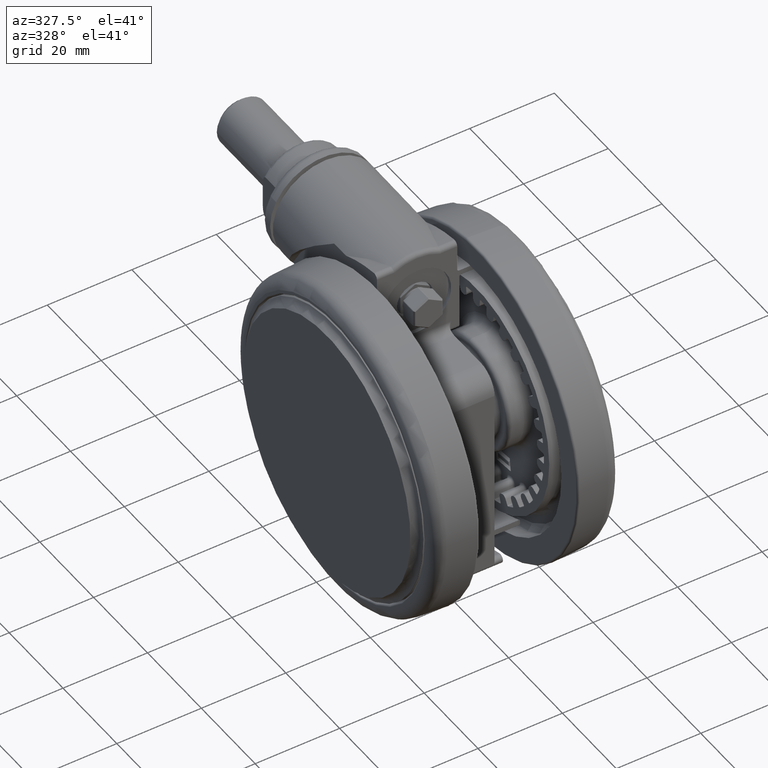
[diagram: clean part render]
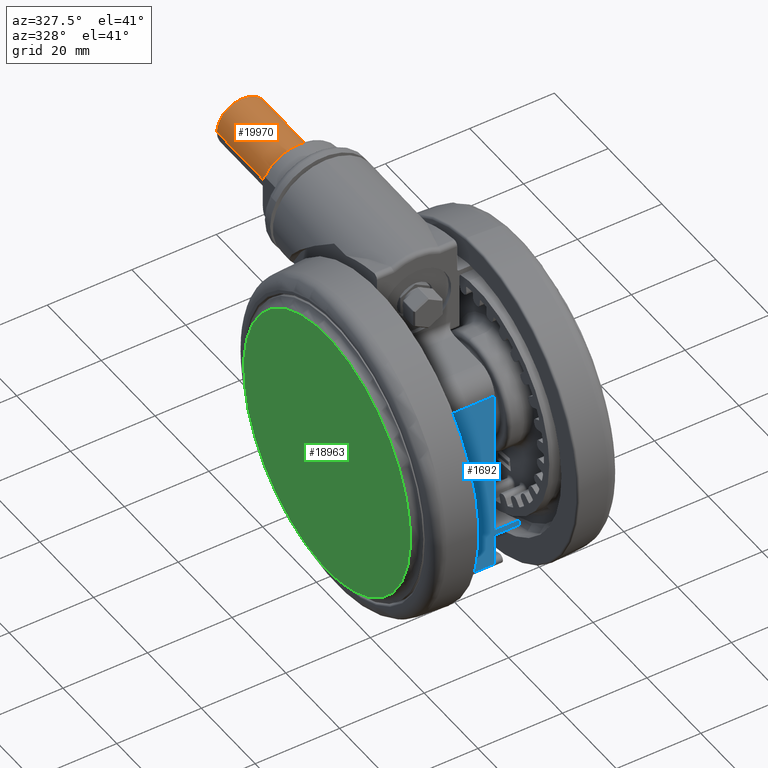
[diagram: same view with three faces highlighted in distinct colors, each labeled with its STEP entity id]
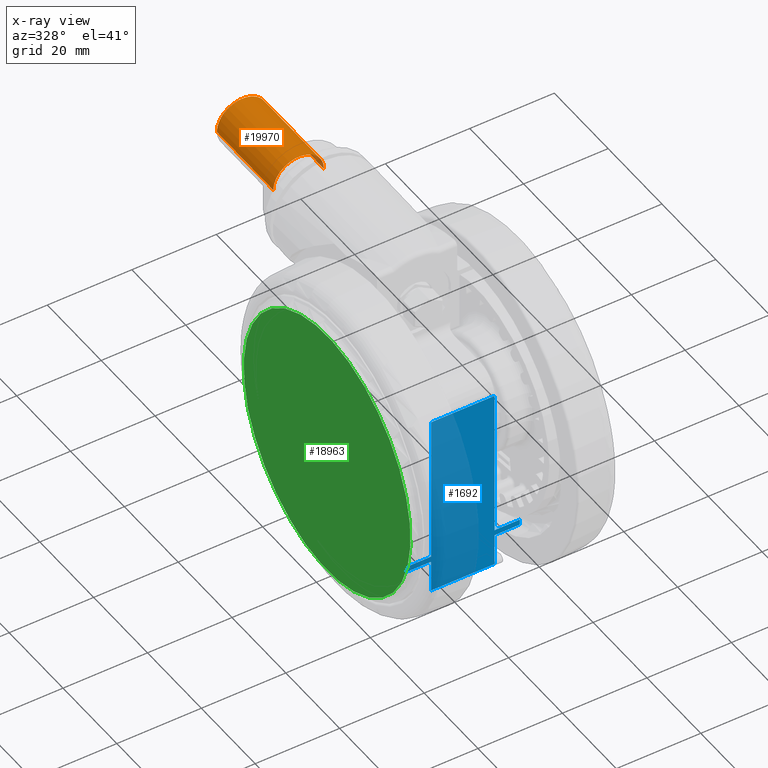
[diagram: x-ray of the same camera — body ghosted, the three highlighted faces saturated]
A machine part, auxiliary view with three faces highlighted in distinct colors.
The next image is the same camera in x-ray (body ghosted, the three faces saturated) — at least one of them is partly hidden behind the body in this view.
Their STEP definitions:

[orange] entity #19970 — the highlighted cylindrical surface (edge-blend (fillet) strip) has radius 6 mm, axis along (0, -1, 0).
#3627 = FACE_OUTER_BOUND ( 'NONE', #69782, .T. ) ;
#6459 = CARTESIAN_POINT ( 'NONE',  ( -44.87548439714007700, -31.08361143950350300, -17.84999999999990900 ) ) ;
#6704 = CARTESIAN_POINT ( 'NONE',  ( -65.75002806099449500, -33.37564695969847900, -29.84999999999991300 ) ) ;
#12896 = VECTOR ( 'NONE', #62279, 1000.000000000000100 ) ;
#16905 = DIRECTION ( 'NONE',  ( 0.9940258887549721100, 0.1091445485807130100, 0.0000000000000000000 ) ) ;
#17796 = AXIS2_PLACEMENT_3D ( 'NONE', #31899, #71784, #37693 ) ;
#18151 = DIRECTION ( 'NONE',  ( 0.0000000000000000000, 0.0000000000000000000, 1.000000000000000000 ) ) ;
#19970 = ADVANCED_FACE ( 'NONE', ( #3627 ), #32045, .T. ) ;
#20348 = DIRECTION ( 'NONE',  ( 0.9940258887549722200, 0.1091445485807130300, -0.0000000000000000000 ) ) ;
#22356 = CARTESIAN_POINT ( 'NONE',  ( -66.74405394974947100, -33.48479150827918700, -17.84999999999990900 ) ) ;
#29431 = VERTEX_POINT ( 'NONE', #6704 ) ;
#29592 = DIRECTION ( 'NONE',  ( 0.9940258887549722200, 0.1091445485807130300, 0.0000000000000000000 ) ) ;
#31899 = CARTESIAN_POINT ( 'NONE',  ( -44.87548439714007700, -31.08361143950350000, -23.84999999999990500 ) ) ;
#32045 = CYLINDRICAL_SURFACE ( 'NONE', #65500, 5.999999999999998200 ) ;
#32374 = ORIENTED_EDGE ( 'NONE', *, *, #35498, .F. ) ;
#35498 = EDGE_CURVE ( 'NONE', #41218, #51645, #56637, .T. ) ;
#37693 = DIRECTION ( 'NONE',  ( 0.0000000000000000000, 0.0000000000000000000, -1.000000000000000000 ) ) ;
#39360 = AXIS2_PLACEMENT_3D ( 'NONE', #54600, #20348, #60279 ) ;
#41218 = VERTEX_POINT ( 'NONE', #73146 ) ;
#41612 = ORIENTED_EDGE ( 'NONE', *, *, #57102, .T. ) ;
#46044 = CIRCLE ( 'NONE', #39360, 5.999999999999998200 ) ;
#46895 = CARTESIAN_POINT ( 'NONE',  ( -66.74405394974947100, -33.48479150827918700, -23.84999999999990500 ) ) ;
#51122 = EDGE_CURVE ( 'NONE', #59319, #51645, #61589, .T. ) ;
#51645 = VERTEX_POINT ( 'NONE', #6459 ) ;
#53853 = ORIENTED_EDGE ( 'NONE', *, *, #59234, .T. ) ;
#54600 = CARTESIAN_POINT ( 'NONE',  ( -65.75002806099449500, -33.37564695969847900, -23.84999999999990500 ) ) ;
#56637 = LINE ( 'NONE', #22356, #12896 ) ;
#56846 = CARTESIAN_POINT ( 'NONE',  ( -66.74405394974947100, -33.48479150827918700, -29.84999999999990500 ) ) ;
#57102 = EDGE_CURVE ( 'NONE', #29431, #59319, #63956, .T. ) ;
#59234 = EDGE_CURVE ( 'NONE', #41218, #29431, #46044, .T. ) ;
#59319 = VERTEX_POINT ( 'NONE', #61269 ) ;
#60279 = DIRECTION ( 'NONE',  ( 0.0000000000000000000, 0.0000000000000000000, -1.000000000000000000 ) ) ;
#60443 = ORIENTED_EDGE ( 'NONE', *, *, #51122, .T. ) ;
#61269 = CARTESIAN_POINT ( 'NONE',  ( -44.87548439714007700, -31.08361143950350300, -29.84999999999990500 ) ) ;
#61589 = CIRCLE ( 'NONE', #17796, 5.999999999999998200 ) ;
#62279 = DIRECTION ( 'NONE',  ( 0.9940258887549721100, 0.1091445485807130100, 0.0000000000000000000 ) ) ;
#63956 = LINE ( 'NONE', #56846, #65761 ) ;
#65500 = AXIS2_PLACEMENT_3D ( 'NONE', #46895, #29592, #18151 ) ;
#65761 = VECTOR ( 'NONE', #16905, 1000.000000000000100 ) ;
#69782 = EDGE_LOOP ( 'NONE', ( #53853, #41612, #60443, #32374 ) ) ;
#71784 = DIRECTION ( 'NONE',  ( -0.9940258887549722200, -0.1091445485807130300, 0.0000000000000000000 ) ) ;
#73146 = CARTESIAN_POINT ( 'NONE',  ( -65.75002806099449500, -33.37564695969847900, -17.84999999999990200 ) ) ;

[blue] entity #1692 — the highlighted planar face has unit normal (0, 1, 0).
#827 = ORIENTED_EDGE ( 'NONE', *, *, #38856, .T. ) ;
#1692 = ADVANCED_FACE ( 'NONE', ( #31874 ), #30031, .F. ) ;
#1724 = DIRECTION ( 'NONE',  ( 0.1091445485807130100, -0.9940258887549721100, 0.0000000000000000000 ) ) ;
#2764 = VERTEX_POINT ( 'NONE', #31605 ) ;
#2939 = ORIENTED_EDGE ( 'NONE', *, *, #54223, .F. ) ;
#4880 = EDGE_CURVE ( 'NONE', #56197, #9586, #49516, .T. ) ;
#5041 = VECTOR ( 'NONE', #63316, 1000.000000000000100 ) ;
#5417 = ORIENTED_EDGE ( 'NONE', *, *, #72891, .T. ) ;
#5443 = CARTESIAN_POINT ( 'NONE',  ( 9.989570540974575900, 28.12882828002068800, -10.54999999998470600 ) ) ;
#5487 = CARTESIAN_POINT ( 'NONE',  ( 10.01383911535957900, 27.90780403707347500, -37.34999999999990200 ) ) ;
#6164 = VECTOR ( 'NONE', #20583, 1000.000000000000100 ) ;
#7129 = DIRECTION ( 'NONE',  ( 0.0000000000000000000, 0.0000000000000000000, 1.000000000000000000 ) ) ;
#7301 = VECTOR ( 'NONE', #60200, 1000.000000000000100 ) ;
#7630 = CARTESIAN_POINT ( 'NONE',  ( 10.13578730687305600, 26.79716991903868000, -37.15000000001510500 ) ) ;
#7912 = CARTESIAN_POINT ( 'NONE',  ( 9.989570540974575900, 28.12882828002068800, -16.35000000000672700 ) ) ;
#8002 = CARTESIAN_POINT ( 'NONE',  ( 10.13578730687305600, 26.79716991903868400, -10.49372095676298500 ) ) ;
#8078 = VECTOR ( 'NONE', #37909, 1000.000000000000100 ) ;
#9076 = LINE ( 'NONE', #49043, #7301 ) ;
#9586 = VERTEX_POINT ( 'NONE', #58008 ) ;
#10014 = CARTESIAN_POINT ( 'NONE',  ( 14.01378203962176300, -8.521379756000452900, -31.34999999999990500 ) ) ;
#10168 = ORIENTED_EDGE ( 'NONE', *, *, #31298, .T. ) ;
#10650 = VECTOR ( 'NONE', #32540, 1000.000000000000000 ) ;
#11805 = EDGE_CURVE ( 'NONE', #50987, #65446, #9076, .T. ) ;
#12108 = LINE ( 'NONE', #27726, #28998 ) ;
#12461 = ORIENTED_EDGE ( 'NONE', *, *, #36657, .F. ) ;
#12531 = EDGE_CURVE ( 'NONE', #58923, #44013, #38375, .T. ) ;
#12905 = VERTEX_POINT ( 'NONE', #58997 ) ;
#13429 = CARTESIAN_POINT ( 'NONE',  ( 10.11743183890163200, 26.96434098347633300, -10.34999999999991100 ) ) ;
#13677 = CARTESIAN_POINT ( 'NONE',  ( 9.989570540974575900, 28.12882828002068800, 499976.1500000000200 ) ) ;
#14333 = DIRECTION ( 'NONE',  ( -0.1091445485807130100, 0.9940258887549721100, 0.0000000000000000000 ) ) ;
#14734 = B_SPLINE_CURVE_WITH_KNOTS ( 'NONE', 3,
 ( #36384, #13429, #30607, #42135, #8002, #47872 ),
 .UNSPECIFIED., .F., .F.,
 ( 4, 2, 4 ),
 ( 0.0000000000000000000, 0.0001658503441797117100, 0.0003317006883594234300 ),
 .UNSPECIFIED. ) ;
#14813 = LINE ( 'NONE', #41497, #58528 ) ;
#15199 = LINE ( 'NONE', #13677, #72267 ) ;
#16257 = DIRECTION ( 'NONE',  ( 0.0000000000000000000, -0.0000000000000000000, -1.000000000000000000 ) ) ;
#16564 = EDGE_CURVE ( 'NONE', #12905, #65446, #73499, .T. ) ;
#16812 = CARTESIAN_POINT ( 'NONE',  ( 10.00171457369481800, 28.01822740187530800, -10.36907386668765000 ) ) ;
#16854 = CARTESIAN_POINT ( 'NONE',  ( 10.00178273068189800, 28.01760666716581800, -37.33140093454709800 ) ) ;
#17101 = CARTESIAN_POINT ( 'NONE',  ( 10.13578730687305600, 26.79716991903868000, -10.54999999998470600 ) ) ;
#17696 = CARTESIAN_POINT ( 'NONE',  ( 9.083224570956200900, 36.38330704311492500, -31.34999999999990500 ) ) ;
#18531 = AXIS2_PLACEMENT_3D ( 'NONE', #24288, #35821, #1724 ) ;
#19137 = CARTESIAN_POINT ( 'NONE',  ( 9.989570540974575900, 28.12882828002068800, -37.15000000001510500 ) ) ;
#19431 = ORIENTED_EDGE ( 'NONE', *, *, #4880, .T. ) ;
#20372 = CARTESIAN_POINT ( 'NONE',  ( 10.13578730687305600, 26.79716991903868000, -31.34999999999308400 ) ) ;
#20540 = EDGE_CURVE ( 'NONE', #61197, #68652, #37391, .T. ) ;
#20583 = DIRECTION ( 'NONE',  ( -0.1091445485807130100, 0.9940258887549721100, 0.0000000000000000000 ) ) ;
#20611 = B_SPLINE_CURVE_WITH_KNOTS ( 'NONE', 3,
 ( #5487, #39613, #16854, #56780, #22558, #62483 ),
 .UNSPECIFIED., .F., .F.,
 ( 4, 2, 4 ),
 ( 0.0000000000000000000, 0.0001651095613647827400, 0.0003302191227295654700 ),
 .UNSPECIFIED. ) ;
#21049 = ORIENTED_EDGE ( 'NONE', *, *, #16564, .T. ) ;
#22067 = ORIENTED_EDGE ( 'NONE', *, *, #52578, .T. ) ;
#22512 = CARTESIAN_POINT ( 'NONE',  ( 10.01383911535957900, 27.90780403707347500, -10.34999999999990500 ) ) ;
#22558 = CARTESIAN_POINT ( 'NONE',  ( 9.989570540974570500, 28.12882828002074100, -37.20600783217725600 ) ) ;
#23161 = VERTEX_POINT ( 'NONE', #19137 ) ;
#23733 = CARTESIAN_POINT ( 'NONE',  ( 10.13578730687305700, 26.79716991903867300, -37.20612124993771600 ) ) ;
#23987 = CARTESIAN_POINT ( 'NONE',  ( 10.13578730687305600, 26.79716991903868000, -37.15000000001510500 ) ) ;
#24288 = CARTESIAN_POINT ( 'NONE',  ( 14.55950478252532900, -13.49150919977531300, -14.34999999999990500 ) ) ;
#24936 = CARTESIAN_POINT ( 'NONE',  ( 10.11131346084530100, 27.02006365826194000, -10.34999999999990500 ) ) ;
#25098 = DIRECTION ( 'NONE',  ( 0.0000000000000000000, -0.0000000000000000000, -1.000000000000000000 ) ) ;
#25833 = DIRECTION ( 'NONE',  ( 0.0000000000000000000, -0.0000000000000000000, -1.000000000000000000 ) ) ;
#27726 = CARTESIAN_POINT ( 'NONE',  ( 10.13578730687305600, 26.79716991903868000, -500023.8499999999800 ) ) ;
#28998 = VECTOR ( 'NONE', #61933, 1000.000000000000000 ) ;
#29733 = CARTESIAN_POINT ( 'NONE',  ( 10.12349014404029600, 26.90916541833712800, -37.33109253446000500 ) ) ;
#30031 = PLANE ( 'NONE',  #18531 ) ;
#30179 = DIRECTION ( 'NONE',  ( -0.1091445485807130100, 0.9940258887549721100, 0.0000000000000000000 ) ) ;
#30607 = CARTESIAN_POINT ( 'NONE',  ( 10.12341627318546100, 26.90983819167384200, -10.36839540332881900 ) ) ;
#31298 = EDGE_CURVE ( 'NONE', #50987, #52767, #14734, .T. ) ;
#31605 = CARTESIAN_POINT ( 'NONE',  ( 9.160014567970291600, 35.68394783533025800, -31.34999999999990500 ) ) ;
#31874 = FACE_OUTER_BOUND ( 'NONE', #45306, .T. ) ;
#31936 = LINE ( 'NONE', #65738, #64068 ) ;
#32277 = EDGE_CURVE ( 'NONE', #61197, #12905, #14813, .T. ) ;
#32540 = DIRECTION ( 'NONE',  ( -0.0000000000000000000, 0.0000000000000000000, 1.000000000000000000 ) ) ;
#32721 = EDGE_CURVE ( 'NONE', #71346, #2764, #50519, .T. ) ;
#33285 = ORIENTED_EDGE ( 'NONE', *, *, #12531, .T. ) ;
#33833 = VERTEX_POINT ( 'NONE', #36630 ) ;
#35517 = CARTESIAN_POINT ( 'NONE',  ( 10.11131346084530100, 27.02006365826194000, -37.34999999999990200 ) ) ;
#35821 = DIRECTION ( 'NONE',  ( -0.9940258887549722200, -0.1091445485807130300, 0.0000000000000000000 ) ) ;
#36384 = CARTESIAN_POINT ( 'NONE',  ( 10.11131346084530100, 27.02006365826194000, -10.34999999999990500 ) ) ;
#36434 = LINE ( 'NONE', #43148, #6164 ) ;
#36630 = CARTESIAN_POINT ( 'NONE',  ( 10.01383911535957900, 27.90780403707347500, -37.34999999999990200 ) ) ;
#36657 = EDGE_CURVE ( 'NONE', #45739, #44752, #69803, .T. ) ;
#37391 = LINE ( 'NONE', #71131, #45443 ) ;
#37909 = DIRECTION ( 'NONE',  ( -0.1091445485807130100, 0.9940258887549721100, 0.0000000000000000000 ) ) ;
#38243 = ORIENTED_EDGE ( 'NONE', *, *, #11805, .F. ) ;
#38375 = LINE ( 'NONE', #72011, #8078 ) ;
#38856 = EDGE_CURVE ( 'NONE', #45739, #58923, #50887, .T. ) ;
#39564 = CARTESIAN_POINT ( 'NONE',  ( 9.989570540974579400, 28.12882828002068800, -10.49413337590734800 ) ) ;
#39613 = CARTESIAN_POINT ( 'NONE',  ( 10.00774814968019700, 27.96327705566721600, -37.34999999999989500 ) ) ;
#39869 = ORIENTED_EDGE ( 'NONE', *, *, #50221, .T. ) ;
#41497 = CARTESIAN_POINT ( 'NONE',  ( 9.989570540974575900, 28.12882828002068800, -500023.8499999999800 ) ) ;
#42083 = EDGE_CURVE ( 'NONE', #71346, #23161, #15199, .T. ) ;
#42135 = CARTESIAN_POINT ( 'NONE',  ( 10.13279227590650300, 26.82444694163932700, -10.44066377245670700 ) ) ;
#42629 = CARTESIAN_POINT ( 'NONE',  ( 10.13578730687305600, 26.79716991903868000, -16.35000000000672700 ) ) ;
#42799 = LINE ( 'NONE', #72422, #10650 ) ;
#43148 = CARTESIAN_POINT ( 'NONE',  ( 10.13578730687305600, 26.79716991903868000, -37.34999999999990200 ) ) ;
#44013 = VERTEX_POINT ( 'NONE', #20372 ) ;
#44752 = VERTEX_POINT ( 'NONE', #42629 ) ;
#44794 = CARTESIAN_POINT ( 'NONE',  ( 9.989570540974575900, 28.12882828002068800, -31.34999999999308400 ) ) ;
#44906 = ORIENTED_EDGE ( 'NONE', *, *, #32721, .T. ) ;
#45306 = EDGE_LOOP ( 'NONE', ( #61873, #21049, #38243, #10168, #2939, #12461, #827, #33285, #5417, #19431, #22067, #39869, #50676, #44906, #61160, #49805 ) ) ;
#45443 = VECTOR ( 'NONE', #14333, 1000.000000000000100 ) ;
#45739 = VERTEX_POINT ( 'NONE', #65556 ) ;
#47872 = CARTESIAN_POINT ( 'NONE',  ( 10.13578730687305600, 26.79716991903868000, -10.54999999998470600 ) ) ;
#49043 = CARTESIAN_POINT ( 'NONE',  ( 10.13578730687305600, 26.79716991903868000, -10.34999999999990500 ) ) ;
#49516 = B_SPLINE_CURVE_WITH_KNOTS ( 'NONE', 3,
 ( #23987, #23733, #58190, #29733, #69620, #35517 ),
 .UNSPECIFIED., .F., .F.,
 ( 4, 2, 4 ),
 ( 0.0000000000000000000, 0.0001658446521539759000, 0.0003316893043079518000 ),
 .UNSPECIFIED. ) ;
#49805 = ORIENTED_EDGE ( 'NONE', *, *, #20540, .F. ) ;
#50221 = EDGE_CURVE ( 'NONE', #33833, #23161, #20611, .T. ) ;
#50519 = LINE ( 'NONE', #17696, #5041 ) ;
#50676 = ORIENTED_EDGE ( 'NONE', *, *, #42083, .F. ) ;
#50887 = LINE ( 'NONE', #56179, #62394 ) ;
#50987 = VERTEX_POINT ( 'NONE', #24936 ) ;
#51058 = CARTESIAN_POINT ( 'NONE',  ( 9.992552640364960900, 28.10166903079175100, -10.44071382150738900 ) ) ;
#52578 = EDGE_CURVE ( 'NONE', #9586, #33833, #36434, .T. ) ;
#52767 = VERTEX_POINT ( 'NONE', #17101 ) ;
#52937 = VECTOR ( 'NONE', #30179, 1000.000000000000100 ) ;
#54223 = EDGE_CURVE ( 'NONE', #44752, #52767, #12108, .T. ) ;
#55917 = EDGE_CURVE ( 'NONE', #2764, #68652, #42799, .T. ) ;
#56179 = CARTESIAN_POINT ( 'NONE',  ( 14.01378203962176300, -8.521379756000452900, -14.34999999999990500 ) ) ;
#56197 = VERTEX_POINT ( 'NONE', #7630 ) ;
#56740 = CARTESIAN_POINT ( 'NONE',  ( 10.00775773630612900, 27.96318974618189700, -10.34999999998573200 ) ) ;
#56780 = CARTESIAN_POINT ( 'NONE',  ( 9.992512654018737500, 28.10203320347707000, -37.25903147562544900 ) ) ;
#58008 = CARTESIAN_POINT ( 'NONE',  ( 10.11131346084530100, 27.02006365826194000, -37.34999999999990200 ) ) ;
#58190 = CARTESIAN_POINT ( 'NONE',  ( 10.13274699792267700, 26.82485930752203600, -37.25962772431864100 ) ) ;
#58528 = VECTOR ( 'NONE', #7129, 1000.000000000000000 ) ;
#58923 = VERTEX_POINT ( 'NONE', #10014 ) ;
#58997 = CARTESIAN_POINT ( 'NONE',  ( 9.989570540974575900, 28.12882828002068800, -10.54999999998470600 ) ) ;
#60200 = DIRECTION ( 'NONE',  ( -0.1091445485807130100, 0.9940258887549721100, 0.0000000000000000000 ) ) ;
#61160 = ORIENTED_EDGE ( 'NONE', *, *, #55917, .T. ) ;
#61197 = VERTEX_POINT ( 'NONE', #7912 ) ;
#61873 = ORIENTED_EDGE ( 'NONE', *, *, #32277, .T. ) ;
#61933 = DIRECTION ( 'NONE',  ( 0.0000000000000000000, 0.0000000000000000000, 1.000000000000000000 ) ) ;
#62394 = VECTOR ( 'NONE', #16257, 1000.000000000000000 ) ;
#62483 = CARTESIAN_POINT ( 'NONE',  ( 9.989570540974575900, 28.12882828002068800, -37.15000000001510500 ) ) ;
#63316 = DIRECTION ( 'NONE',  ( -0.1091445485807130100, 0.9940258887549721100, 0.0000000000000000000 ) ) ;
#64068 = VECTOR ( 'NONE', #25833, 1000.000000000000000 ) ;
#64325 = CARTESIAN_POINT ( 'NONE',  ( 9.083224570956200900, 36.38330704311492500, -16.34999999999990500 ) ) ;
#64329 = CARTESIAN_POINT ( 'NONE',  ( 9.160014567970291600, 35.68394783533025800, -16.34999999999990500 ) ) ;
#65446 = VERTEX_POINT ( 'NONE', #73385 ) ;
#65556 = CARTESIAN_POINT ( 'NONE',  ( 14.01378203962176300, -8.521379756000452900, -16.34999999999990500 ) ) ;
#65738 = CARTESIAN_POINT ( 'NONE',  ( 10.13578730687305600, 26.79716991903868000, 499976.1500000000200 ) ) ;
#68652 = VERTEX_POINT ( 'NONE', #64329 ) ;
#69620 = CARTESIAN_POINT ( 'NONE',  ( 10.11742144273138100, 26.96443566582658800, -37.35000000001407700 ) ) ;
#69803 = LINE ( 'NONE', #64325, #52937 ) ;
#71131 = CARTESIAN_POINT ( 'NONE',  ( 9.083224570956200900, 36.38330704311492500, -16.34999999999990500 ) ) ;
#71346 = VERTEX_POINT ( 'NONE', #44794 ) ;
#72011 = CARTESIAN_POINT ( 'NONE',  ( 9.083224570956200900, 36.38330704311492500, -31.34999999999990500 ) ) ;
#72267 = VECTOR ( 'NONE', #25098, 1000.000000000000000 ) ;
#72422 = CARTESIAN_POINT ( 'NONE',  ( 9.160014567970291600, 35.68394783533025800, -14.34999999999990500 ) ) ;
#72891 = EDGE_CURVE ( 'NONE', #44013, #56197, #31936, .T. ) ;
#73385 = CARTESIAN_POINT ( 'NONE',  ( 10.01383911535957900, 27.90780403707347500, -10.34999999999990500 ) ) ;
#73499 = B_SPLINE_CURVE_WITH_KNOTS ( 'NONE', 3,
 ( #5443, #39564, #51058, #16812, #56740, #22512 ),
 .UNSPECIFIED., .F., .F.,
 ( 4, 2, 4 ),
 ( 0.0000000000000000000, 0.0001651062108754268100, 0.0003302124217508536200 ),
 .UNSPECIFIED. ) ;

[green] entity #18963 — the highlighted planar face has unit normal (1, 0, 0).
#11586 = CARTESIAN_POINT ( 'NONE',  ( -5.204170427930421300E-015, 0.0000000000000000000, -47.69999999999990300 ) ) ;
#15869 = VERTEX_POINT ( 'NONE', #26627 ) ;
#17267 = DIRECTION ( 'NONE',  ( 0.3638165914634250400, -0.9314706048909623400, 0.0000000000000000000 ) ) ;
#18712 = EDGE_LOOP ( 'NONE', ( #44214, #46583 ) ) ;
#18963 = ADVANCED_FACE ( 'NONE', ( #48224 ), #65308, .F. ) ;
#20467 = DIRECTION ( 'NONE',  ( 0.0000000000000000000, -0.0000000000000000000, -1.000000000000000000 ) ) ;
#26627 = CARTESIAN_POINT ( 'NONE',  ( 11.27831433536617400, -28.87558875161984400, -47.69999999999990300 ) ) ;
#28426 = EDGE_CURVE ( 'NONE', #36272, #15869, #34855, .T. ) ;
#31160 = DIRECTION ( 'NONE',  ( 0.0000000000000000000, 0.0000000000000000000, 1.000000000000000000 ) ) ;
#34741 = AXIS2_PLACEMENT_3D ( 'NONE', #54713, #20467, #60389 ) ;
#34855 = CIRCLE ( 'NONE', #70291, 31.00000000000000400 ) ;
#35779 = CIRCLE ( 'NONE', #34741, 31.00000000000000400 ) ;
#36272 = VERTEX_POINT ( 'NONE', #41773 ) ;
#41773 = CARTESIAN_POINT ( 'NONE',  ( -11.27831433536618600, 28.87558875161984400, -47.69999999999990300 ) ) ;
#44214 = ORIENTED_EDGE ( 'NONE', *, *, #62409, .T. ) ;
#46583 = ORIENTED_EDGE ( 'NONE', *, *, #28426, .T. ) ;
#48224 = FACE_OUTER_BOUND ( 'NONE', #18712, .T. ) ;
#51508 = DIRECTION ( 'NONE',  ( 0.0000000000000000000, -0.0000000000000000000, -1.000000000000000000 ) ) ;
#53919 = CARTESIAN_POINT ( 'NONE',  ( -28.87558875161984400, -11.27831433536617700, -47.69999999999990300 ) ) ;
#54713 = CARTESIAN_POINT ( 'NONE',  ( -5.204170427930421300E-015, 0.0000000000000000000, -47.69999999999990300 ) ) ;
#55926 = AXIS2_PLACEMENT_3D ( 'NONE', #53919, #31160, #71029 ) ;
#60389 = DIRECTION ( 'NONE',  ( 0.3638165914634250400, -0.9314706048909623400, 0.0000000000000000000 ) ) ;
#62409 = EDGE_CURVE ( 'NONE', #15869, #36272, #35779, .T. ) ;
#65308 = PLANE ( 'NONE',  #55926 ) ;
#70291 = AXIS2_PLACEMENT_3D ( 'NONE', #11586, #51508, #17267 ) ;
#71029 = DIRECTION ( 'NONE',  ( -0.3638165914634249900, 0.9314706048909623400, 0.0000000000000000000 ) ) ;